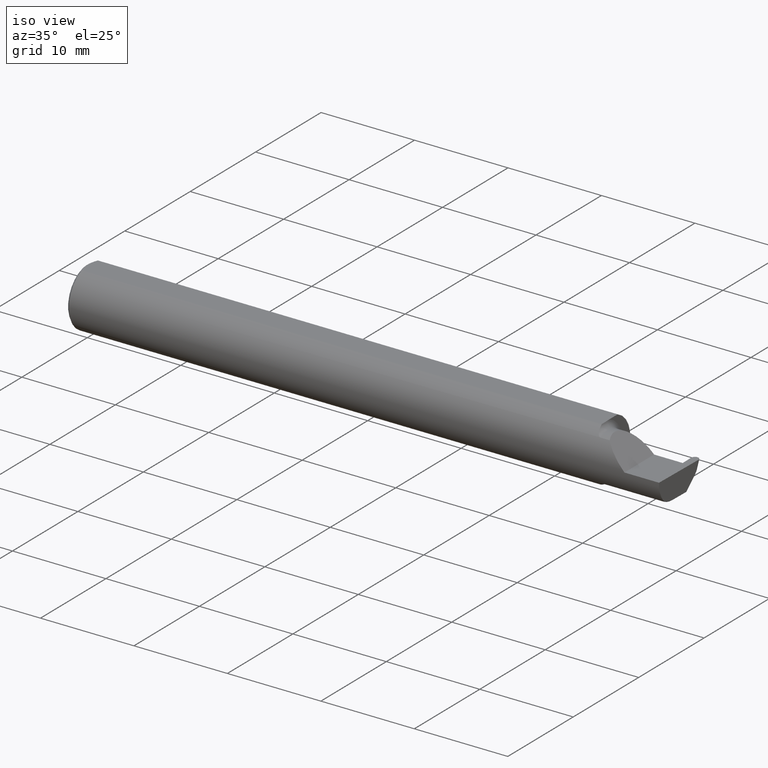
[diagram: clean part render]
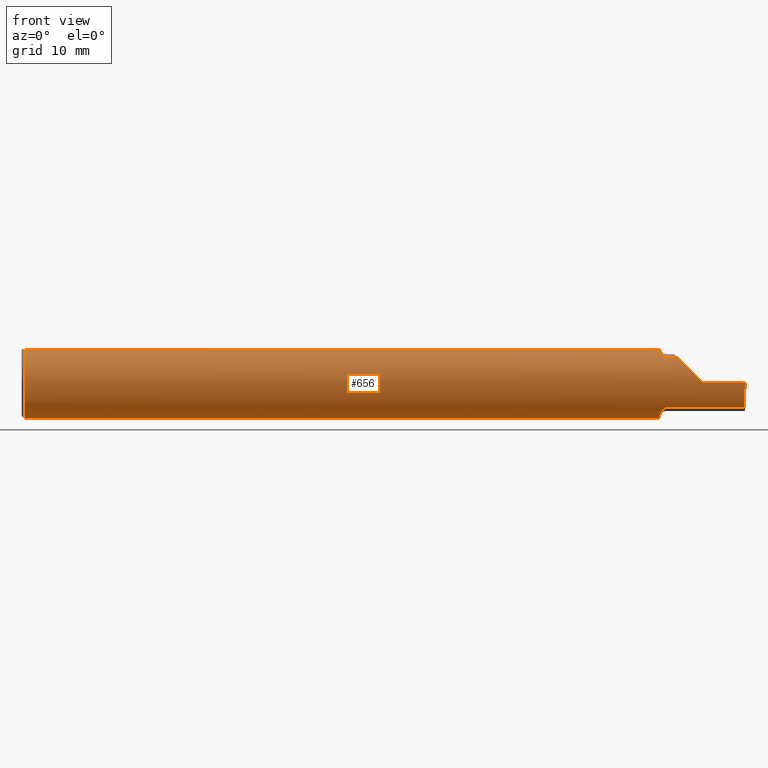
[diagram: tour spotlight — one face highlighted and labeled with its STEP entity id]
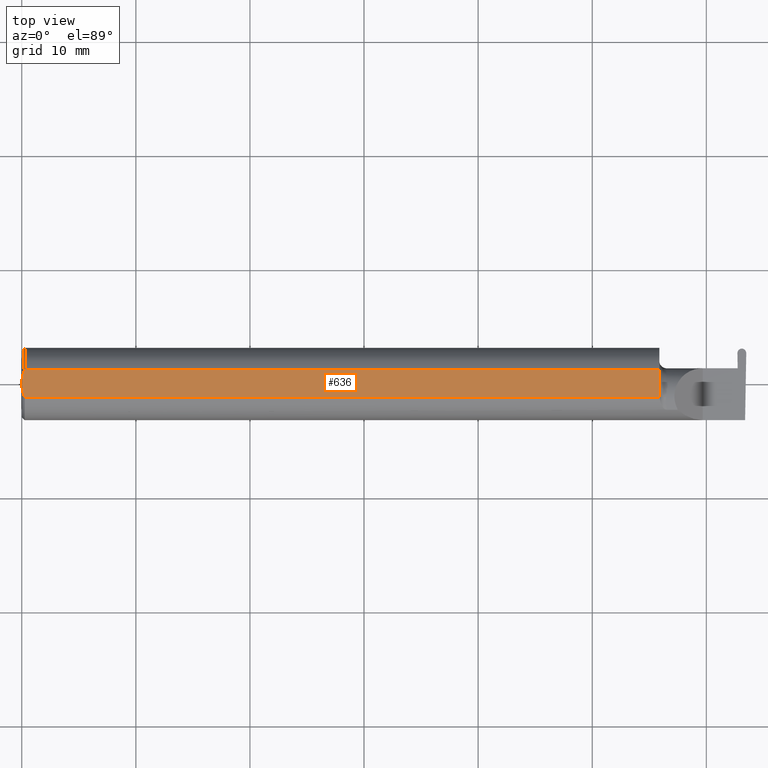
[diagram: tour spotlight — one face highlighted and labeled with its STEP entity id]
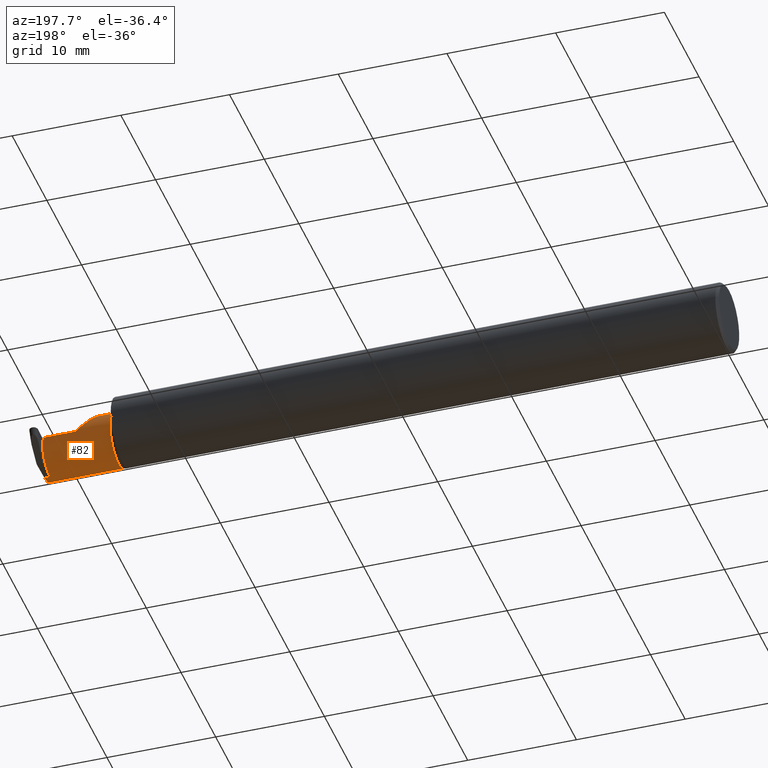
[diagram: tour spotlight — one face highlighted and labeled with its STEP entity id]
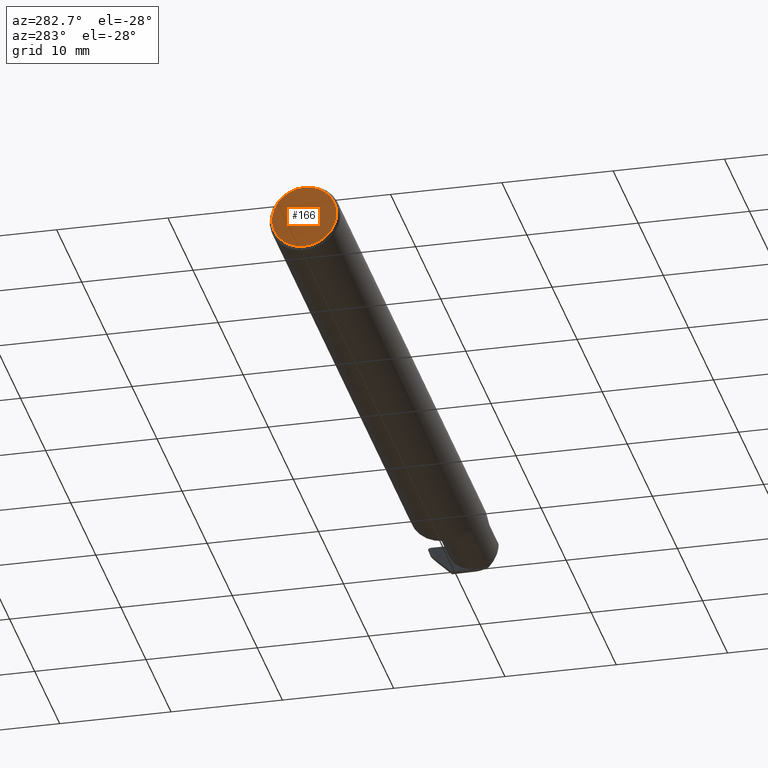
[diagram: tour spotlight — one face highlighted and labeled with its STEP entity id]
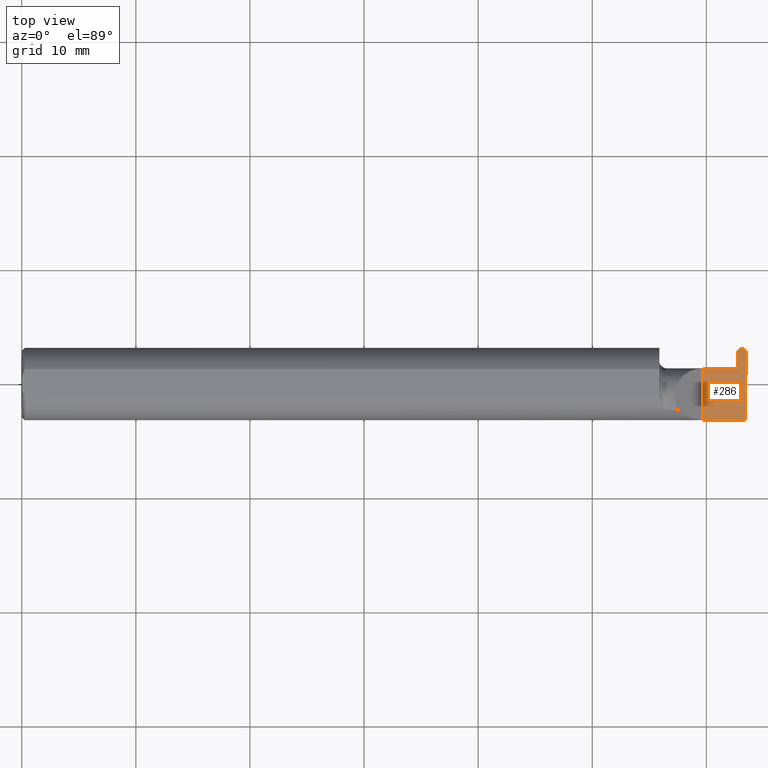
[diagram: tour spotlight — one face highlighted and labeled with its STEP entity id]
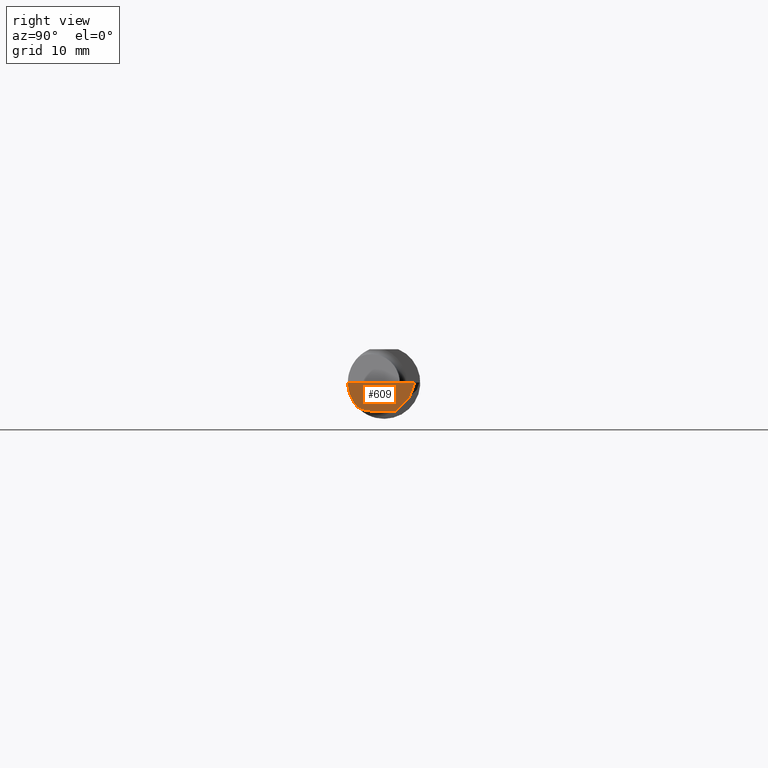
[diagram: tour spotlight — one face highlighted and labeled with its STEP entity id]
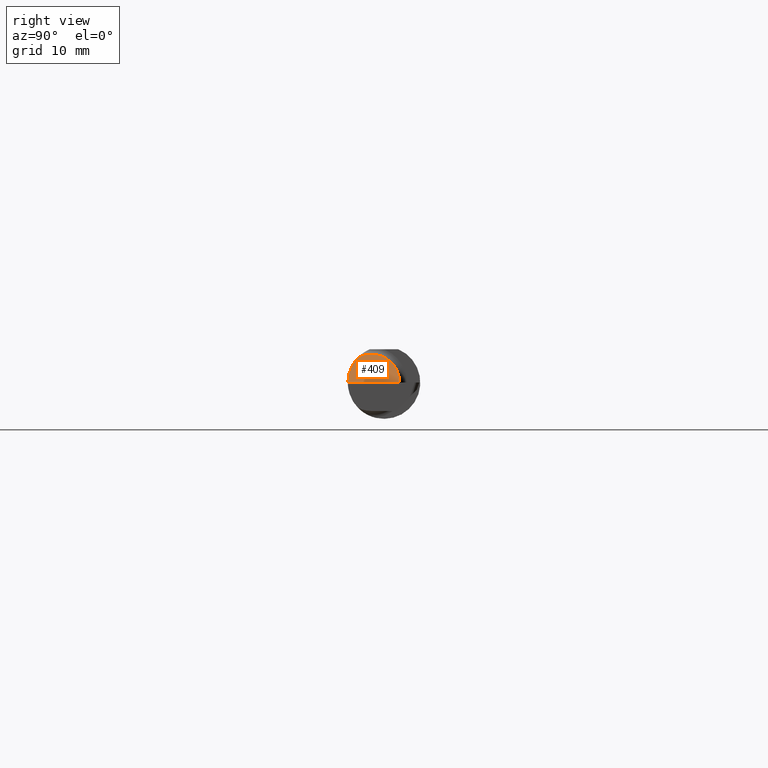
[diagram: tour spotlight — one face highlighted and labeled with its STEP entity id]
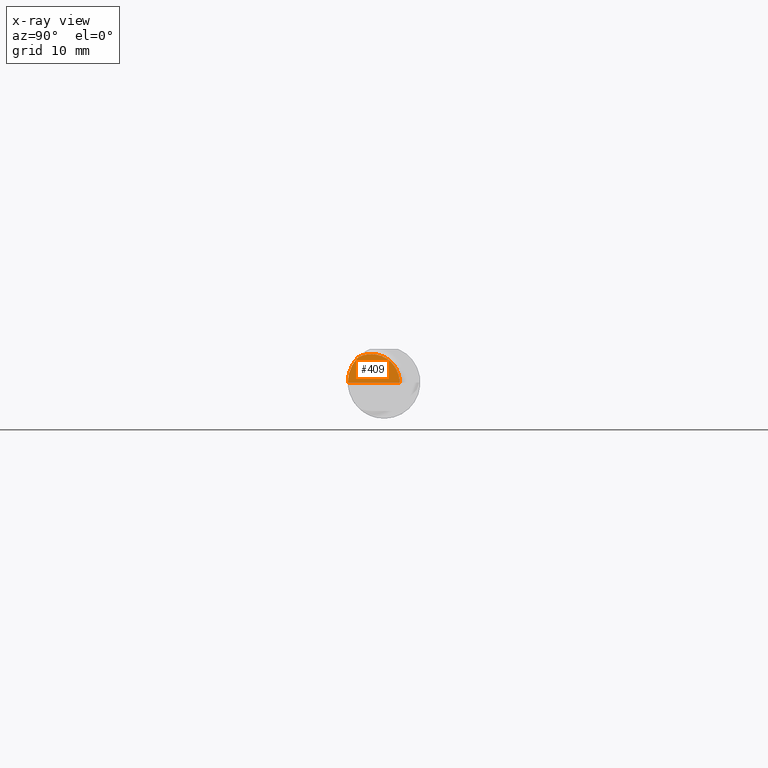
[diagram: x-ray of the same camera — body ghosted, this tour face saturated]
A machine part: a face-by-face anatomy tour. The part has 19 B-rep faces; the first image is the clean iso view, then the 7 largest visible faces are spotlighted one at a time (largest first), each with its STEP entity span.

Face 1 — front view, entity #656. In plain terms, the highlighted cylindrical surface (edge-blend (fillet) strip) has radius 3.175 mm, axis along (-1, -0, -0).
Definition (entity closure, byte-faithful):
#15 = ORIENTED_EDGE ( 'NONE', *, *, #61, .T. ) ;
#24 = CARTESIAN_POINT ( 'NONE',  ( 2.494820567471968786, -0.1250000000000000000, -0.03254916765648427357 ) ) ;
#34 = EDGE_CURVE ( 'NONE', #44, #296, #689, .T. ) ;
#35 = AXIS2_PLACEMENT_3D ( 'NONE', #391, #610, #122 ) ;
#38 = CARTESIAN_POINT ( 'NONE',  ( 2.495957382595297869, -0.1250000000000000000, 0.000000000000000000 ) ) ;
#40 = CARTESIAN_POINT ( 'NONE',  ( 2.202426556614085484, -0.05801934803182666467, 0.1111534264545083334 ) ) ;
#43 = EDGE_CURVE ( 'NONE', #390, #138, #578, .T. ) ;
#44 = VERTEX_POINT ( 'NONE', #642 ) ;
#45 = CARTESIAN_POINT ( 'NONE',  ( 2.210996102358147475, -0.08116363444194610310, 0.09515685373905001521 ) ) ;
#52 = DIRECTION ( 'NONE',  ( 1.000000000000000000, 0.000000000000000000, 0.000000000000000000 ) ) ;
#59 = CARTESIAN_POINT ( 'NONE',  ( 2.225000000000000089, -0.09042045454545413752, 0.08630840862739540265 ) ) ;
#61 = EDGE_CURVE ( 'NONE', #138, #100, #239, .T. ) ;
#62 = CARTESIAN_POINT ( 'NONE',  ( 2.205932841370987774, -0.07048791403321974514, -0.1034389270157553553 ) ) ;
#69 = CARTESIAN_POINT ( 'NONE',  ( 0.01000000000000042348, 0.000000000000000000, 0.000000000000000000 ) ) ;
#75 = CARTESIAN_POINT ( 'NONE',  ( 2.200000000000000178, 0.000000000000000000, 0.000000000000000000 ) ) ;
#80 = ORIENTED_EDGE ( 'NONE', *, *, #43, .T. ) ;
#86 = DIRECTION ( 'NONE',  ( 0.000000000000000000, 1.000000000000000000, 0.000000000000000000 ) ) ;
#89 = DIRECTION ( 'NONE',  ( 0.000000000000000000, 0.000000000000000000, -1.000000000000000000 ) ) ;
#96 = CARTESIAN_POINT ( 'NONE',  ( 2.204267307214414107, -0.06631395538221017405, 0.1063681193389255375 ) ) ;
#100 = VERTEX_POINT ( 'NONE', #103 ) ;
#101 = EDGE_CURVE ( 'NONE', #44, #114, #324, .T. ) ;
#103 = CARTESIAN_POINT ( 'NONE',  ( 2.263691591372603895, -0.09042045454545426242, 0.08630840862739529162 ) ) ;
#114 = VERTEX_POINT ( 'NONE', #389 ) ;
#116 = CARTESIAN_POINT ( 'NONE',  ( 0.000000000000000000, 0.04898979485566374442, 0.1149999999999999217 ) ) ;
#122 = DIRECTION ( 'NONE',  ( 0.000000000000000000, 0.000000000000000000, 1.000000000000000000 ) ) ;
#125 = DIRECTION ( 'NONE',  ( -1.000000000000000000, -1.584044490014838108E-16, -0.000000000000000000 ) ) ;
#127 = B_SPLINE_CURVE_WITH_KNOTS ( 'NONE', 3,
 ( #637, #40, #96, #422, #45, #263, #698, #474, #209, #271 ),
 .UNSPECIFIED., .F., .F.,
 ( 4, 2, 2, 2, 4 ),
 ( 5.067393806054781801E-07, 0.0007430328995834715403, 0.001114295979684904988, 0.001299927519735621277, 0.001485559059786337567 ),
 .UNSPECIFIED. ) ;
#128 = VERTEX_POINT ( 'NONE', #59 ) ;
#130 = CARTESIAN_POINT ( 'NONE',  ( 2.200000000000000178, -0.02763636363636349721, -0.1219066503721543682 ) ) ;
#138 = VERTEX_POINT ( 'NONE', #438 ) ;
#159 = CARTESIAN_POINT ( 'NONE',  ( 2.214104893754833991, -0.08507551663519469232, -0.09161800969921159166 ) ) ;
#169 = ORIENTED_EDGE ( 'NONE', *, *, #101, .F. ) ;
#174 = LINE ( 'NONE', #497, #653 ) ;
#176 = FACE_OUTER_BOUND ( 'NONE', #517, .T. ) ;
#186 = ORIENTED_EDGE ( 'NONE', *, *, #586, .T. ) ;
#189 = EDGE_CURVE ( 'NONE', #440, #234, #445, .T. ) ;
#194 = CARTESIAN_POINT ( 'NONE',  ( 0.01000000000000042348, 0.000000000000000000, 0.000000000000000000 ) ) ;
#197 = DIRECTION ( 'NONE',  ( 1.000000000000000000, 0.000000000000000000, 0.000000000000000000 ) ) ;
#202 = VECTOR ( 'NONE', #358, 39.37007874015748143 ) ;
#209 = CARTESIAN_POINT ( 'NONE',  ( 2.222488493957806899, -0.09042045454585179165, 0.08630840862697893023 ) ) ;
#216 = EDGE_CURVE ( 'NONE', #128, #100, #174, .T. ) ;
#226 = CARTESIAN_POINT ( 'NONE',  ( 2.217439721641150552, -0.08786602687380729027, -0.08891702384475598520 ) ) ;
#231 = DIRECTION ( 'NONE',  ( 0.000000000000000000, 0.000000000000000000, -1.000000000000000000 ) ) ;
#234 = VERTEX_POINT ( 'NONE', #551 ) ;
#239 =( BOUNDED_CURVE ( )  B_SPLINE_CURVE ( 3, ( #310, #464, #489, #520 ),
 .UNSPECIFIED., .F., .T. ) 
 B_SPLINE_CURVE_WITH_KNOTS ( ( 4, 4 ),
 ( 4.712388980384689674, 5.474523801125207534 ),
 .UNSPECIFIED. ) 
 CURVE ( )  GEOMETRIC_REPRESENTATION_ITEM ( )  RATIONAL_B_SPLINE_CURVE ( ( 1.000000000000000000, 0.9521787881681380572, 0.9521787881681380572, 1.000000000000000000 ) ) 
 REPRESENTATION_ITEM ( '' )  );
#241 = ORIENTED_EDGE ( 'NONE', *, *, #360, .T. ) ;
#254 = CARTESIAN_POINT ( 'NONE',  ( 2.493976598891079810, -0.1128945894460737925, -0.06276352435079125824 ) ) ;
#263 = CARTESIAN_POINT ( 'NONE',  ( 2.214945076695470583, -0.08578123596776233983, 0.09094459933486033487 ) ) ;
#264 = AXIS2_PLACEMENT_3D ( 'NONE', #194, #197, #89 ) ;
#271 = CARTESIAN_POINT ( 'NONE',  ( 2.225000000000000089, -0.09042045454545413752, 0.08630840862739540265 ) ) ;
#274 = ORIENTED_EDGE ( 'NONE', *, *, #189, .F. ) ;
#281 = CARTESIAN_POINT ( 'NONE',  ( 2.225000000000000089, -0.09042045454545417915, -0.08630840862739537489 ) ) ;
#289 = LINE ( 'NONE', #506, #439 ) ;
#296 = VERTEX_POINT ( 'NONE', #309 ) ;
#309 = CARTESIAN_POINT ( 'NONE',  ( 0.01000000000000042348, 0.000000000000000000, -0.1250000000000000000 ) ) ;
#310 = CARTESIAN_POINT ( 'NONE',  ( 2.350000000000000089, -0.1250000000000000278, 1.836970198721028825E-17 ) ) ;
#317 = VERTEX_POINT ( 'NONE', #130 ) ;
#324 = LINE ( 'NONE', #540, #463 ) ;
#329 = CARTESIAN_POINT ( 'NONE',  ( 2.218701570004388834, -0.08871861273376804857, -0.08806160498138418391 ) ) ;
#341 = CARTESIAN_POINT ( 'NONE',  ( 2.493546555653489705, -0.09042045454545424854, -0.08630840862739526387 ) ) ;
#356 = DIRECTION ( 'NONE',  ( 1.000000000000000000, 1.584044490014838108E-16, 0.000000000000000000 ) ) ;
#357 = EDGE_CURVE ( 'NONE', #317, #440, #486, .T. ) ;
#358 = DIRECTION ( 'NONE',  ( -1.000000000000000000, -0.000000000000000000, -0.000000000000000000 ) ) ;
#360 = EDGE_CURVE ( 'NONE', #655, #390, #696, .T. ) ;
#364 = CARTESIAN_POINT ( 'NONE',  ( 2.225000000000000089, -0.09042045454545417915, -0.08630840862739537489 ) ) ;
#379 = CARTESIAN_POINT ( 'NONE',  ( 2.221593478233292007, -0.08999923832592909845, -0.08675238105120963716 ) ) ;
#388 = DIRECTION ( 'NONE',  ( 1.000000000000000000, 0.000000000000000000, 0.000000000000000000 ) ) ;
#389 = CARTESIAN_POINT ( 'NONE',  ( 2.201278290187167919, -0.04898979485481827489, 0.1149999999999999217 ) ) ;
#390 = VERTEX_POINT ( 'NONE', #587 ) ;
#391 = CARTESIAN_POINT ( 'NONE',  ( 0.000000000000000000, 0.000000000000000000, 0.000000000000000000 ) ) ;
#422 = CARTESIAN_POINT ( 'NONE',  ( 2.209055883886138272, -0.07758562614434498517, 0.09811804109501673365 ) ) ;
#426 = VERTEX_POINT ( 'NONE', #364 ) ;
#427 = CARTESIAN_POINT ( 'NONE',  ( 2.223259114367880596, -0.09042045454545415140, -0.08630840862739541652 ) ) ;
#436 = VECTOR ( 'NONE', #442, 39.37007874015748143 ) ;
#438 = CARTESIAN_POINT ( 'NONE',  ( 2.350000000000000089, -0.1250000000000000278, 1.836970198721028825E-17 ) ) ;
#439 = VECTOR ( 'NONE', #125, 39.37007874015748143 ) ;
#440 = VERTEX_POINT ( 'NONE', #641 ) ;
#441 = CARTESIAN_POINT ( 'NONE',  ( 2.201267035147732365, -0.05364148398375680887, -0.1136671534952896495 ) ) ;
#442 = DIRECTION ( 'NONE',  ( -1.000000000000000000, -0.000000000000000000, -0.000000000000000000 ) ) ;
#445 = LINE ( 'NONE', #116, #436 ) ;
#462 = EDGE_CURVE ( 'NONE', #114, #128, #127, .T. ) ;
#463 = VECTOR ( 'NONE', #52, 39.37007874015748143 ) ;
#464 = CARTESIAN_POINT ( 'NONE',  ( 2.317450832343515454, -0.1250000000000000000, 0.03254916765648422500 ) ) ;
#474 = CARTESIAN_POINT ( 'NONE',  ( 2.220169762358874976, -0.08954173371311437146, 0.08723520050116063962 ) ) ;
#475 = CARTESIAN_POINT ( 'NONE',  ( 3.749399456654637998E-32, -0.1249999999999999861, 3.061616997868380183E-16 ) ) ;
#485 = ORIENTED_EDGE ( 'NONE', *, *, #34, .T. ) ;
#486 = CIRCLE ( 'NONE', #577, 0.1250000000000000000 ) ;
#489 = CARTESIAN_POINT ( 'NONE',  ( 2.287236475649208511, -0.1128945894460738203, 0.06276352435079116110 ) ) ;
#491 = CARTESIAN_POINT ( 'NONE',  ( 2.207957287629478849, -0.07583111505166761912, -0.09955951024620261769 ) ) ;
#496 = CYLINDRICAL_SURFACE ( 'NONE', #35, 0.1250000000000000000 ) ;
#497 = CARTESIAN_POINT ( 'NONE',  ( 2.347234615000000080, -0.09042045454545427630, 0.08630840862739526387 ) ) ;
#498 = ORIENTED_EDGE ( 'NONE', *, *, #357, .F. ) ;
#506 = CARTESIAN_POINT ( 'NONE',  ( 2.347234615000000080, -0.09042045454545427630, -0.08630840862739526387 ) ) ;
#517 = EDGE_LOOP ( 'NONE', ( #614, #241, #80, #15, #552, #676, #169, #485, #186, #274, #498, #527 ) ) ;
#520 = CARTESIAN_POINT ( 'NONE',  ( 2.263691591372603895, -0.09042045454545426242, 0.08630840862739529162 ) ) ;
#525 = CIRCLE ( 'NONE', #613, 0.1250000000000000000 ) ;
#527 = ORIENTED_EDGE ( 'NONE', *, *, #565, .F. ) ;
#540 = CARTESIAN_POINT ( 'NONE',  ( 0.000000000000000000, -0.04898979485566374442, 0.1149999999999999217 ) ) ;
#543 = CARTESIAN_POINT ( 'NONE',  ( 2.200000000000000178, -0.04088126997068464857, -0.1189040164168497782 ) ) ;
#551 = CARTESIAN_POINT ( 'NONE',  ( 0.01000000000000042348, 0.04898979485566374442, 0.1149999999999999217 ) ) ;
#552 = ORIENTED_EDGE ( 'NONE', *, *, #216, .F. ) ;
#565 = EDGE_CURVE ( 'NONE', #426, #317, #573, .T. ) ;
#571 = CARTESIAN_POINT ( 'NONE',  ( 2.493546555653489705, -0.09042045454545424854, -0.08630840862739526387 ) ) ;
#573 = B_SPLINE_CURVE_WITH_KNOTS ( 'NONE', 3,
 ( #281, #427, #379, #329, #226, #159, #597, #491, #62, #441, #543, #602 ),
 .UNSPECIFIED., .F., .F.,
 ( 4, 2, 2, 2, 2, 4 ),
 ( 1.964009442425878487E-07, 0.0001304774066965708613, 0.0002607584124488991303, 0.0005213204239535685703, 0.001042444446962907450, 0.002084692492981586077 ),
 .UNSPECIFIED. ) ;
#577 = AXIS2_PLACEMENT_3D ( 'NONE', #75, #356, #86 ) ;
#578 = LINE ( 'NONE', #475, #202 ) ;
#586 = EDGE_CURVE ( 'NONE', #296, #234, #525, .T. ) ;
#587 = CARTESIAN_POINT ( 'NONE',  ( 2.495957382595297869, -0.1250000000000000000, 0.000000000000000000 ) ) ;
#597 = CARTESIAN_POINT ( 'NONE',  ( 2.212379706860116535, -0.08285324498731268250, -0.09364669410973930352 ) ) ;
#602 = CARTESIAN_POINT ( 'NONE',  ( 2.200000000000000178, -0.02763636363636349721, -0.1219066503721543682 ) ) ;
#610 = DIRECTION ( 'NONE',  ( -1.000000000000000000, -0.000000000000000000, -0.000000000000000000 ) ) ;
#613 = AXIS2_PLACEMENT_3D ( 'NONE', #69, #388, #231 ) ;
#614 = ORIENTED_EDGE ( 'NONE', *, *, #660, .F. ) ;
#637 = CARTESIAN_POINT ( 'NONE',  ( 2.201278290187167919, -0.04898979485481827489, 0.1149999999999999217 ) ) ;
#641 = CARTESIAN_POINT ( 'NONE',  ( 2.200000000000000178, 0.04898979485566374442, 0.1149999999999999217 ) ) ;
#642 = CARTESIAN_POINT ( 'NONE',  ( 0.01000000000000042348, -0.04898979485566374442, 0.1149999999999999217 ) ) ;
#653 = VECTOR ( 'NONE', #659, 39.37007874015748143 ) ;
#655 = VERTEX_POINT ( 'NONE', #341 ) ;
#656 = ADVANCED_FACE ( 'NONE', ( #176 ), #496, .T. ) ;
#659 = DIRECTION ( 'NONE',  ( 1.000000000000000000, 1.584044490014838108E-16, 0.000000000000000000 ) ) ;
#660 = EDGE_CURVE ( 'NONE', #655, #426, #289, .T. ) ;
#676 = ORIENTED_EDGE ( 'NONE', *, *, #462, .F. ) ;
#689 = CIRCLE ( 'NONE', #264, 0.1250000000000000000 ) ;
#696 =( BOUNDED_CURVE ( )  B_SPLINE_CURVE ( 3, ( #571, #254, #24, #38 ),
 .UNSPECIFIED., .F., .T. ) 
 B_SPLINE_CURVE_WITH_KNOTS ( ( 4, 4 ),
 ( 0.3451966888490350382, 1.107331509589553287 ),
 .UNSPECIFIED. ) 
 CURVE ( )  GEOMETRIC_REPRESENTATION_ITEM ( )  RATIONAL_B_SPLINE_CURVE ( ( 1.000000000000000000, 0.9521787881681380572, 0.9521787881681380572, 1.000000000000000000 ) ) 
 REPRESENTATION_ITEM ( '' )  );
#698 = CARTESIAN_POINT ( 'NONE',  ( 2.216446811421532548, -0.08721672169474514735, 0.08955973280246740109 ) ) ;

Face 2 — top view, entity #636. In plain terms, the highlighted planar face has unit normal (0, 0, 1).
Definition (entity closure, byte-faithful):
#29 = B_SPLINE_CURVE_WITH_KNOTS ( 'NONE', 3,
 ( #157, #581, #530, #84, #36, #42 ),
 .UNSPECIFIED., .F., .F.,
 ( 4, 2, 4 ),
 ( 0.001061950514642623312, 0.001696734447512964709, 0.002331518380383306322 ),
 .UNSPECIFIED. ) ;
#36 = CARTESIAN_POINT ( 'NONE',  ( 1.541666659510484467E-16, -0.008419750986449443114, 0.1149999999999999356 ) ) ;
#42 = CARTESIAN_POINT ( 'NONE',  ( 0.000000000000000000, 3.414809992080329023E-17, 0.1149999999999999217 ) ) ;
#44 = VERTEX_POINT ( 'NONE', #642 ) ;
#52 = DIRECTION ( 'NONE',  ( 1.000000000000000000, 0.000000000000000000, 0.000000000000000000 ) ) ;
#55 = DIRECTION ( 'NONE',  ( 1.000000000000000000, 0.000000000000000000, -0.000000000000000000 ) ) ;
#66 = DIRECTION ( 'NONE',  ( 0.000000000000000000, 0.000000000000000000, 1.000000000000000000 ) ) ;
#84 = CARTESIAN_POINT ( 'NONE',  ( 0.0009328476361608245343, -0.01672844127736827086, 0.1149999999999999217 ) ) ;
#91 = EDGE_CURVE ( 'NONE', #44, #307, #29, .T. ) ;
#101 = EDGE_CURVE ( 'NONE', #44, #114, #324, .T. ) ;
#106 = EDGE_LOOP ( 'NONE', ( #172, #140, #219, #224, #154, #467 ) ) ;
#114 = VERTEX_POINT ( 'NONE', #389 ) ;
#116 = CARTESIAN_POINT ( 'NONE',  ( 0.000000000000000000, 0.04898979485566374442, 0.1149999999999999217 ) ) ;
#140 = ORIENTED_EDGE ( 'NONE', *, *, #187, .T. ) ;
#146 = CARTESIAN_POINT ( 'NONE',  ( 1.642610067308552155E-16, 0.01684316307400865464, 0.1149999999999999217 ) ) ;
#154 = ORIENTED_EDGE ( 'NONE', *, *, #482, .F. ) ;
#157 = CARTESIAN_POINT ( 'NONE',  ( 0.01000000000000042348, -0.04898979485566374442, 0.1149999999999999217 ) ) ;
#172 = ORIENTED_EDGE ( 'NONE', *, *, #101, .T. ) ;
#187 = EDGE_CURVE ( 'NONE', #114, #407, #225, .T. ) ;
#188 = LINE ( 'NONE', #675, #598 ) ;
#189 = EDGE_CURVE ( 'NONE', #440, #234, #445, .T. ) ;
#219 = ORIENTED_EDGE ( 'NONE', *, *, #283, .T. ) ;
#224 = ORIENTED_EDGE ( 'NONE', *, *, #189, .T. ) ;
#225 = B_SPLINE_CURVE_WITH_KNOTS ( 'NONE', 3,
 ( #385, #279, #599, #612, #338, #227 ),
 .UNSPECIFIED., .F., .F.,
 ( 4, 2, 4 ),
 ( 0.009319464280412737694, 0.009934044568948304649, 0.01054862485748387160 ),
 .UNSPECIFIED. ) ;
#227 = CARTESIAN_POINT ( 'NONE',  ( 2.200000000000000178, -0.0003651515414568704703, 0.1149999999999999217 ) ) ;
#234 = VERTEX_POINT ( 'NONE', #551 ) ;
#253 = AXIS2_PLACEMENT_3D ( 'NONE', #278, #66, #55 ) ;
#278 = CARTESIAN_POINT ( 'NONE',  ( 2.753179778023443269, 0.1250000000000000278, 0.1149999999999999217 ) ) ;
#279 = CARTESIAN_POINT ( 'NONE',  ( 2.201395249340555527, -0.04087966525207987339, 0.1149999999999999356 ) ) ;
#283 = EDGE_CURVE ( 'NONE', #407, #440, #188, .T. ) ;
#307 = VERTEX_POINT ( 'NONE', #522 ) ;
#320 = CARTESIAN_POINT ( 'NONE',  ( 0.000000000000000000, 3.414809992080329023E-17, 0.1149999999999999217 ) ) ;
#324 = LINE ( 'NONE', #540, #463 ) ;
#338 = CARTESIAN_POINT ( 'NONE',  ( 2.200000000000000622, -0.008475349815580478230, 0.1149999999999999356 ) ) ;
#351 = B_SPLINE_CURVE_WITH_KNOTS ( 'NONE', 3,
 ( #320, #146, #479, #369 ),
 .UNSPECIFIED., .F., .F.,
 ( 4, 4 ),
 ( 0.002331518380383306322, 0.003601362264757408584 ),
 .UNSPECIFIED. ) ;
#369 = CARTESIAN_POINT ( 'NONE',  ( 0.01000000000000042348, 0.04898979485566374442, 0.1149999999999999217 ) ) ;
#385 = CARTESIAN_POINT ( 'NONE',  ( 2.201278290187167919, -0.04898979485481827489, 0.1149999999999999217 ) ) ;
#389 = CARTESIAN_POINT ( 'NONE',  ( 2.201278290187167919, -0.04898979485481827489, 0.1149999999999999217 ) ) ;
#407 = VERTEX_POINT ( 'NONE', #580 ) ;
#436 = VECTOR ( 'NONE', #442, 39.37007874015748143 ) ;
#440 = VERTEX_POINT ( 'NONE', #641 ) ;
#442 = DIRECTION ( 'NONE',  ( -1.000000000000000000, -0.000000000000000000, -0.000000000000000000 ) ) ;
#444 = PLANE ( 'NONE',  #253 ) ;
#445 = LINE ( 'NONE', #116, #436 ) ;
#463 = VECTOR ( 'NONE', #52, 39.37007874015748143 ) ;
#467 = ORIENTED_EDGE ( 'NONE', *, *, #91, .F. ) ;
#479 = CARTESIAN_POINT ( 'NONE',  ( 0.003880275146595849479, 0.03337499979622342988, 0.1149999999999999217 ) ) ;
#482 = EDGE_CURVE ( 'NONE', #307, #234, #351, .T. ) ;
#522 = CARTESIAN_POINT ( 'NONE',  ( 0.000000000000000000, 3.414809992080329023E-17, 0.1149999999999999217 ) ) ;
#530 = CARTESIAN_POINT ( 'NONE',  ( 0.004414142251465132810, -0.03315347577847933824, 0.1149999999999999356 ) ) ;
#540 = CARTESIAN_POINT ( 'NONE',  ( 0.000000000000000000, -0.04898979485566374442, 0.1149999999999999217 ) ) ;
#551 = CARTESIAN_POINT ( 'NONE',  ( 0.01000000000000042348, 0.04898979485566374442, 0.1149999999999999217 ) ) ;
#553 = FACE_OUTER_BOUND ( 'NONE', #106, .T. ) ;
#580 = CARTESIAN_POINT ( 'NONE',  ( 2.200000000000000178, -0.0003651515414568704703, 0.1149999999999999217 ) ) ;
#581 = CARTESIAN_POINT ( 'NONE',  ( 0.006956794985978487743, -0.04122489957750442163, 0.1149999999999999356 ) ) ;
#598 = VECTOR ( 'NONE', #685, 39.37007874015748143 ) ;
#599 = CARTESIAN_POINT ( 'NONE',  ( 2.201184456069787743, -0.03277259381711081915, 0.1149999999999999356 ) ) ;
#612 = CARTESIAN_POINT ( 'NONE',  ( 2.200474906351709503, -0.01657217611495901549, 0.1149999999999999217 ) ) ;
#636 = ADVANCED_FACE ( 'NONE', ( #553 ), #444, .T. ) ;
#641 = CARTESIAN_POINT ( 'NONE',  ( 2.200000000000000178, 0.04898979485566374442, 0.1149999999999999217 ) ) ;
#642 = CARTESIAN_POINT ( 'NONE',  ( 0.01000000000000042348, -0.04898979485566374442, 0.1149999999999999217 ) ) ;
#675 = CARTESIAN_POINT ( 'NONE',  ( 2.200000000000000178, 0.1249999999999999306, 0.1149999999999999217 ) ) ;
#685 = DIRECTION ( 'NONE',  ( -1.584044490014838108E-16, 1.000000000000000000, 0.000000000000000000 ) ) ;

Face 3 — auxiliary view, entity #82. In plain terms, the highlighted cylindrical surface (edge-blend (fillet) strip) has radius 2.4892 mm, axis along (-1, -0, -0).
Definition (entity closure, byte-faithful):
#11 = DIRECTION ( 'NONE',  ( -1.000000000000000000, -1.584044490014838108E-16, -0.000000000000000000 ) ) ;
#13 = EDGE_CURVE ( 'NONE', #128, #426, #22, .T. ) ;
#16 = CARTESIAN_POINT ( 'NONE',  ( 2.493664221452986052, -0.06028551311893171061, -0.09800000000000015643 ) ) ;
#19 = CARTESIAN_POINT ( 'NONE',  ( 2.463961723292897421, 0.05376127692546270320, -0.006836134426925991742 ) ) ;
#22 = CIRCLE ( 'NONE', #476, 0.09800000000000012867 ) ;
#32 = CYLINDRICAL_SURFACE ( 'NONE', #651, 0.09800000000000008704 ) ;
#58 = CARTESIAN_POINT ( 'NONE',  ( 2.493948486141865484, -0.04399999999999965050, -0.09800000000000001765 ) ) ;
#59 = CARTESIAN_POINT ( 'NONE',  ( 2.225000000000000089, -0.09042045454545413752, 0.08630840862739540265 ) ) ;
#70 = CARTESIAN_POINT ( 'NONE',  ( 2.224355642859858317, -0.01728409361947863543, 0.1256443571401404113 ) ) ;
#74 = ORIENTED_EDGE ( 'NONE', *, *, #13, .F. ) ;
#82 = ADVANCED_FACE ( 'NONE', ( #416 ), #32, .T. ) ;
#90 = B_SPLINE_CURVE_WITH_KNOTS ( 'NONE', 3,
 ( #19, #115, #605, #376 ),
 .UNSPECIFIED., .F., .F.,
 ( 4, 4 ),
 ( 0.000000000000000000, 1.000000000000000000 ),
 .UNSPECIFIED. ) ;
#94 = ORIENTED_EDGE ( 'NONE', *, *, #137, .T. ) ;
#95 = DIRECTION ( 'NONE',  ( 1.000000000000000000, 1.584044490014838108E-16, 0.000000000000000000 ) ) ;
#100 = VERTEX_POINT ( 'NONE', #103 ) ;
#103 = CARTESIAN_POINT ( 'NONE',  ( 2.263691591372603895, -0.09042045454545426242, 0.08630840862739529162 ) ) ;
#115 = CARTESIAN_POINT ( 'NONE',  ( 2.464041297651076157, 0.05384085128364179962, -0.004557422951283986688 ) ) ;
#125 = DIRECTION ( 'NONE',  ( -1.000000000000000000, -1.584044490014838108E-16, -0.000000000000000000 ) ) ;
#126 = CARTESIAN_POINT ( 'NONE',  ( 2.473987104431409012, -0.04400000000000004602, -0.09800000000000005929 ) ) ;
#128 = VERTEX_POINT ( 'NONE', #59 ) ;
#131 = EDGE_LOOP ( 'NONE', ( #399, #74, #643, #94, #433, #354, #175, #538, #182, #179 ) ) ;
#137 = EDGE_CURVE ( 'NONE', #100, #509, #313, .T. ) ;
#147 = DIRECTION ( 'NONE',  ( 0.000000000000000000, -1.000000000000000000, 0.000000000000000000 ) ) ;
#148 = CARTESIAN_POINT ( 'NONE',  ( 2.672413070268786939, -0.04399999999999965050, -0.09800000000000001765 ) ) ;
#164 = LINE ( 'NONE', #644, #223 ) ;
#173 = CARTESIAN_POINT ( 'NONE',  ( 2.470630317148074795, 0.05376127692545597941, -0.006836134426923960380 ) ) ;
#174 = LINE ( 'NONE', #497, #653 ) ;
#175 = ORIENTED_EDGE ( 'NONE', *, *, #557, .F. ) ;
#177 = CARTESIAN_POINT ( 'NONE',  ( 2.493948486141865484, -0.04399999999999965050, -0.09800000000000001765 ) ) ;
#179 = ORIENTED_EDGE ( 'NONE', *, *, #546, .F. ) ;
#181 = CARTESIAN_POINT ( 'NONE',  ( 2.470630317148074795, 0.05376127692545597941, -0.006836134426923960380 ) ) ;
#182 = ORIENTED_EDGE ( 'NONE', *, *, #419, .F. ) ;
#203 = DIRECTION ( 'NONE',  ( -1.000000000000000000, -1.584044490014838108E-16, -0.000000000000000000 ) ) ;
#210 = VERTEX_POINT ( 'NONE', #177 ) ;
#216 = EDGE_CURVE ( 'NONE', #128, #100, #174, .T. ) ;
#223 = VECTOR ( 'NONE', #11, 39.37007874015748143 ) ;
#257 = VERTEX_POINT ( 'NONE', #181 ) ;
#267 = DIRECTION ( 'NONE',  ( -1.000000000000000000, -0.000000000000000000, -0.000000000000000000 ) ) ;
#273 = DIRECTION ( 'NONE',  ( -1.000000000000000000, -1.584044490014838108E-16, -0.000000000000000000 ) ) ;
#276 = CARTESIAN_POINT ( 'NONE',  ( 2.263691591372603895, -0.09042045454545426242, 0.08630840862739529162 ) ) ;
#289 = LINE ( 'NONE', #506, #439 ) ;
#290 = CARTESIAN_POINT ( 'NONE',  ( 2.350000000000000089, 0.05400000000000000633, 3.673940397442056417E-17 ) ) ;
#313 =( BOUNDED_CURVE ( )  B_SPLINE_CURVE ( 3, ( #276, #70, #398, #290 ),
 .UNSPECIFIED., .F., .T. ) 
 B_SPLINE_CURVE_WITH_KNOTS ( ( 4, 4 ),
 ( 5.789722842198297137, 7.853981633974482790 ),
 .UNSPECIFIED. ) 
 CURVE ( )  GEOMETRIC_REPRESENTATION_ITEM ( )  RATIONAL_B_SPLINE_CURVE ( ( 1.000000000000000000, 0.6753281001527247085, 0.6753281001527247085, 1.000000000000000000 ) ) 
 REPRESENTATION_ITEM ( '' )  );
#331 = VERTEX_POINT ( 'NONE', #678 ) ;
#332 = CARTESIAN_POINT ( 'NONE',  ( 2.473919830754201410, 0.01027834358092145038, -0.09800000000000008704 ) ) ;
#341 = CARTESIAN_POINT ( 'NONE',  ( 2.493546555653489705, -0.09042045454545424854, -0.08630840862739526387 ) ) ;
#354 = ORIENTED_EDGE ( 'NONE', *, *, #620, .F. ) ;
#364 = CARTESIAN_POINT ( 'NONE',  ( 2.225000000000000089, -0.09042045454545417915, -0.08630840862739537489 ) ) ;
#366 = LINE ( 'NONE', #582, #579 ) ;
#376 = CARTESIAN_POINT ( 'NONE',  ( 2.464200446367434516, 0.05399999999999999245, 0.000000000000000000 ) ) ;
#382 = VERTEX_POINT ( 'NONE', #126 ) ;
#398 = CARTESIAN_POINT ( 'NONE',  ( 2.266956372099407702, 0.05399999999999999245, 0.08304362790059170718 ) ) ;
#399 = ORIENTED_EDGE ( 'NONE', *, *, #660, .T. ) ;
#416 = FACE_OUTER_BOUND ( 'NONE', #131, .T. ) ;
#419 = EDGE_CURVE ( 'NONE', #210, #382, #487, .T. ) ;
#426 = VERTEX_POINT ( 'NONE', #364 ) ;
#430 = CARTESIAN_POINT ( 'NONE',  ( 2.473987104431409012, -0.04400000000000004602, -0.09800000000000005929 ) ) ;
#433 = ORIENTED_EDGE ( 'NONE', *, *, #518, .T. ) ;
#439 = VECTOR ( 'NONE', #125, 39.37007874015748143 ) ;
#446 =( BOUNDED_CURVE ( )  B_SPLINE_CURVE ( 3, ( #652, #556, #16, #58 ),
 .UNSPECIFIED., .F., .T. ) 
 B_SPLINE_CURVE_WITH_KNOTS ( ( 4, 4 ),
 ( 6.253187659403644183, 6.746650124384936831 ),
 .UNSPECIFIED. ) 
 CURVE ( )  GEOMETRIC_REPRESENTATION_ITEM ( )  RATIONAL_B_SPLINE_CURVE ( ( 1.000000000000000000, 0.9798106333074685370, 0.9798106333074685370, 1.000000000000000000 ) ) 
 REPRESENTATION_ITEM ( '' )  );
#459 = CARTESIAN_POINT ( 'NONE',  ( 2.464200446367434516, 0.05399999999999999245, 0.000000000000000000 ) ) ;
#466 = CARTESIAN_POINT ( 'NONE',  ( 2.200000000000000178, -0.04400000000000008765, 0.000000000000000000 ) ) ;
#476 = AXIS2_PLACEMENT_3D ( 'NONE', #593, #273, #686 ) ;
#487 = LINE ( 'NONE', #148, #533 ) ;
#497 = CARTESIAN_POINT ( 'NONE',  ( 2.347234615000000080, -0.09042045454545427630, 0.08630840862739526387 ) ) ;
#506 = CARTESIAN_POINT ( 'NONE',  ( 2.347234615000000080, -0.09042045454545427630, -0.08630840862739526387 ) ) ;
#509 = VERTEX_POINT ( 'NONE', #632 ) ;
#518 = EDGE_CURVE ( 'NONE', #509, #683, #366, .T. ) ;
#533 = VECTOR ( 'NONE', #267, 39.37007874015748143 ) ;
#538 = ORIENTED_EDGE ( 'NONE', *, *, #592, .F. ) ;
#546 = EDGE_CURVE ( 'NONE', #655, #210, #446, .T. ) ;
#556 = CARTESIAN_POINT ( 'NONE',  ( 2.493527483980555903, -0.07607783494366254784, -0.09402249966297465678 ) ) ;
#557 = EDGE_CURVE ( 'NONE', #257, #331, #164, .T. ) ;
#574 =( BOUNDED_CURVE ( )  B_SPLINE_CURVE ( 3, ( #430, #332, #647, #173 ),
 .UNSPECIFIED., .F., .T. ) 
 B_SPLINE_CURVE_WITH_KNOTS ( ( 4, 4 ),
 ( 3.176499238629675315, 4.677482395344797261 ),
 .UNSPECIFIED. ) 
 CURVE ( )  GEOMETRIC_REPRESENTATION_ITEM ( )  RATIONAL_B_SPLINE_CURVE ( ( 1.000000000000000000, 0.8209024677461140840, 0.8209024677461140840, 1.000000000000000000 ) ) 
 REPRESENTATION_ITEM ( '' )  );
#579 = VECTOR ( 'NONE', #95, 39.37007874015748143 ) ;
#582 = CARTESIAN_POINT ( 'NONE',  ( 2.200000000000000178, 0.05399999999999998551, 3.673940397442056417E-17 ) ) ;
#592 = EDGE_CURVE ( 'NONE', #382, #257, #574, .T. ) ;
#593 = CARTESIAN_POINT ( 'NONE',  ( 2.225000000000000089, -0.04400000000000008765, 0.000000000000000000 ) ) ;
#605 = CARTESIAN_POINT ( 'NONE',  ( 2.464120872009255336, 0.05392042564182088910, -0.002278711475641992910 ) ) ;
#620 = EDGE_CURVE ( 'NONE', #331, #683, #90, .T. ) ;
#632 = CARTESIAN_POINT ( 'NONE',  ( 2.350000000000000089, 0.05400000000000000633, 3.673940397442056417E-17 ) ) ;
#643 = ORIENTED_EDGE ( 'NONE', *, *, #216, .T. ) ;
#644 = CARTESIAN_POINT ( 'NONE',  ( 2.199999999999999734, 0.05376127692546130155, -0.006836134426945271458 ) ) ;
#647 = CARTESIAN_POINT ( 'NONE',  ( 2.472556783207861653, 0.04997501107658557790, -0.06098225869090281859 ) ) ;
#651 = AXIS2_PLACEMENT_3D ( 'NONE', #466, #203, #147 ) ;
#652 = CARTESIAN_POINT ( 'NONE',  ( 2.493546555653489705, -0.09042045454545424854, -0.08630840862739526387 ) ) ;
#653 = VECTOR ( 'NONE', #659, 39.37007874015748143 ) ;
#655 = VERTEX_POINT ( 'NONE', #341 ) ;
#659 = DIRECTION ( 'NONE',  ( 1.000000000000000000, 1.584044490014838108E-16, 0.000000000000000000 ) ) ;
#660 = EDGE_CURVE ( 'NONE', #655, #426, #289, .T. ) ;
#678 = CARTESIAN_POINT ( 'NONE',  ( 2.463961723292897421, 0.05376127692546270320, -0.006836134426925991742 ) ) ;
#683 = VERTEX_POINT ( 'NONE', #459 ) ;
#686 = DIRECTION ( 'NONE',  ( 0.000000000000000000, -1.000000000000000000, 0.000000000000000000 ) ) ;

Face 4 — auxiliary view, entity #166. In plain terms, the highlighted planar face has unit normal (1, 0, 0).
Definition (entity closure, byte-faithful):
#33 = DIRECTION ( 'NONE',  ( 0.000000000000000000, 0.000000000000000000, -1.000000000000000000 ) ) ;
#47 = AXIS2_PLACEMENT_3D ( 'NONE', #143, #623, #33 ) ;
#76 = CIRCLE ( 'NONE', #47, 0.1149999999999997274 ) ;
#143 = CARTESIAN_POINT ( 'NONE',  ( 0.000000000000000000, 0.000000000000000000, 0.000000000000000000 ) ) ;
#166 = ADVANCED_FACE ( 'NONE', ( #392 ), #431, .F. ) ;
#198 = DIRECTION ( 'NONE',  ( 0.000000000000000000, 0.000000000000000000, -1.000000000000000000 ) ) ;
#307 = VERTEX_POINT ( 'NONE', #522 ) ;
#334 = EDGE_CURVE ( 'NONE', #494, #307, #76, .T. ) ;
#368 = EDGE_CURVE ( 'NONE', #307, #494, #699, .T. ) ;
#392 = FACE_OUTER_BOUND ( 'NONE', #617, .T. ) ;
#431 = PLANE ( 'NONE',  #585 ) ;
#494 = VERTEX_POINT ( 'NONE', #529 ) ;
#500 = CARTESIAN_POINT ( 'NONE',  ( 0.000000000000000000, 0.000000000000000000, 0.000000000000000000 ) ) ;
#515 = CARTESIAN_POINT ( 'NONE',  ( 0.000000000000000000, 0.000000000000000000, 0.000000000000000000 ) ) ;
#522 = CARTESIAN_POINT ( 'NONE',  ( 0.000000000000000000, 3.414809992080329023E-17, 0.1149999999999999217 ) ) ;
#529 = CARTESIAN_POINT ( 'NONE',  ( 0.000000000000000000, 0.000000000000000000, -0.1149999999999997274 ) ) ;
#585 = AXIS2_PLACEMENT_3D ( 'NONE', #500, #603, #654 ) ;
#594 = ORIENTED_EDGE ( 'NONE', *, *, #368, .T. ) ;
#603 = DIRECTION ( 'NONE',  ( 1.000000000000000000, 0.000000000000000000, 0.000000000000000000 ) ) ;
#611 = AXIS2_PLACEMENT_3D ( 'NONE', #515, #630, #198 ) ;
#617 = EDGE_LOOP ( 'NONE', ( #594, #640 ) ) ;
#623 = DIRECTION ( 'NONE',  ( -1.000000000000000000, -0.000000000000000000, -0.000000000000000000 ) ) ;
#630 = DIRECTION ( 'NONE',  ( -1.000000000000000000, -0.000000000000000000, -0.000000000000000000 ) ) ;
#640 = ORIENTED_EDGE ( 'NONE', *, *, #334, .T. ) ;
#654 = DIRECTION ( 'NONE',  ( 0.000000000000000000, 0.000000000000000000, -1.000000000000000000 ) ) ;
#699 = CIRCLE ( 'NONE', #611, 0.1149999999999997274 ) ;

Face 5 — top view, entity #286. In plain terms, the highlighted planar face has unit normal (-0, 0, -1).
Definition (entity closure, byte-faithful):
#3 = VERTEX_POINT ( 'NONE', #39 ) ;
#7 = CARTESIAN_POINT ( 'NONE',  ( 2.469484345974817696, 0.1057354023860208880, 0.000000000000000000 ) ) ;
#9 = EDGE_CURVE ( 'NONE', #68, #562, #184, .T. ) ;
#27 = LINE ( 'NONE', #79, #251 ) ;
#39 = CARTESIAN_POINT ( 'NONE',  ( 2.484590643401954679, 0.1219999999999999835, 0.000000000000000000 ) ) ;
#43 = EDGE_CURVE ( 'NONE', #390, #138, #578, .T. ) ;
#53 = ORIENTED_EDGE ( 'NONE', *, *, #295, .F. ) ;
#60 = VERTEX_POINT ( 'NONE', #572 ) ;
#68 = VERTEX_POINT ( 'NONE', #199 ) ;
#79 = CARTESIAN_POINT ( 'NONE',  ( 2.470387390782552650, 0.05400000000000000633, 0.000000000000000000 ) ) ;
#92 = LINE ( 'NONE', #269, #488 ) ;
#95 = DIRECTION ( 'NONE',  ( 1.000000000000000000, 1.584044490014838108E-16, 0.000000000000000000 ) ) ;
#105 = CARTESIAN_POINT ( 'NONE',  ( 2.475584878715685111, 0.1219999999999998724, 1.127860089025957087E-18 ) ) ;
#111 = CARTESIAN_POINT ( 'NONE',  ( 2.469318218598224313, 0.1152528334169432706, 1.895304614445361654E-18 ) ) ;
#135 = FACE_OUTER_BOUND ( 'NONE', #608, .T. ) ;
#138 = VERTEX_POINT ( 'NONE', #438 ) ;
#144 = ORIENTED_EDGE ( 'NONE', *, *, #43, .F. ) ;
#152 = AXIS2_PLACEMENT_3D ( 'NONE', #302, #306, #348 ) ;
#184 =( BOUNDED_CURVE ( )  B_SPLINE_CURVE ( 3, ( #410, #524, #312, #421 ),
 .UNSPECIFIED., .F., .T. ) 
 B_SPLINE_CURVE_WITH_KNOTS ( ( 4, 4 ),
 ( 1.677524580234105667, 3.253450286950869685 ),
 .UNSPECIFIED. ) 
 CURVE ( )  GEOMETRIC_REPRESENTATION_ITEM ( )  RATIONAL_B_SPLINE_CURVE ( ( 1.000000000000000000, 0.8035272986452609567, 0.8035272986452609567, 1.000000000000000000 ) ) 
 REPRESENTATION_ITEM ( '' )  );
#185 = LINE ( 'NONE', #627, #393 ) ;
#199 = CARTESIAN_POINT ( 'NONE',  ( 2.499984884025182375, 0.1057354023860208464, 0.000000000000000000 ) ) ;
#202 = VECTOR ( 'NONE', #358, 39.37007874015748143 ) ;
#213 = EDGE_CURVE ( 'NONE', #60, #566, #333, .T. ) ;
#220 = CARTESIAN_POINT ( 'NONE',  ( 2.484590643401954679, 0.1219999999999999835, 0.000000000000000000 ) ) ;
#222 = VECTOR ( 'NONE', #548, 39.37007874015747433 ) ;
#228 = ORIENTED_EDGE ( 'NONE', *, *, #383, .F. ) ;
#229 =( BOUNDED_CURVE ( )  B_SPLINE_CURVE ( 3, ( #220, #105, #111, #7 ),
 .UNSPECIFIED., .F., .T. ) 
 B_SPLINE_CURVE_WITH_KNOTS ( ( 4, 4 ),
 ( 6.171327673818510995, 7.747253380535275902 ),
 .UNSPECIFIED. ) 
 CURVE ( )  GEOMETRIC_REPRESENTATION_ITEM ( )  RATIONAL_B_SPLINE_CURVE ( ( 1.000000000000000000, 0.8035272986452608457, 0.8035272986452608457, 1.000000000000000000 ) ) 
 REPRESENTATION_ITEM ( '' )  );
#251 = VECTOR ( 'NONE', #361, 39.37007874015748143 ) ;
#269 = CARTESIAN_POINT ( 'NONE',  ( -3.937007874019685528E-05, 0.1219999999999999835, 0.000000000000000000 ) ) ;
#286 = ADVANCED_FACE ( 'NONE', ( #135 ), #511, .F. ) ;
#295 = EDGE_CURVE ( 'NONE', #683, #60, #27, .T. ) ;
#299 = CARTESIAN_POINT ( 'NONE',  ( 2.350000000000000089, -0.2500000000000000555, 1.836970198721028825E-17 ) ) ;
#302 = CARTESIAN_POINT ( 'NONE',  ( 2.500000000000000000, -0.2500000000000000555, 0.000000000000000000 ) ) ;
#306 = DIRECTION ( 'NONE',  ( -1.224646799147352468E-16, 0.000000000000000000, -1.000000000000000000 ) ) ;
#308 = VECTOR ( 'NONE', #561, 39.37007874015748143 ) ;
#311 = DIRECTION ( 'NONE',  ( 1.000000000000000000, -0.000000000000000000, -0.000000000000000000 ) ) ;
#312 = CARTESIAN_POINT ( 'NONE',  ( 2.493884351284315848, 0.1219999999999998030, -1.127860089025957857E-18 ) ) ;
#326 = CARTESIAN_POINT ( 'NONE',  ( 2.484878586598046724, 0.1219999999999999835, 0.000000000000000000 ) ) ;
#333 = LINE ( 'NONE', #507, #222 ) ;
#337 = CARTESIAN_POINT ( 'NONE',  ( 2.469484345974817696, 0.1057354023860208880, 0.000000000000000000 ) ) ;
#344 = EDGE_CURVE ( 'NONE', #68, #390, #185, .T. ) ;
#345 = LINE ( 'NONE', #299, #308 ) ;
#348 = DIRECTION ( 'NONE',  ( -1.000000000000000000, 0.000000000000000000, 1.224646799147352468E-16 ) ) ;
#352 = ORIENTED_EDGE ( 'NONE', *, *, #437, .F. ) ;
#358 = DIRECTION ( 'NONE',  ( -1.000000000000000000, -0.000000000000000000, -0.000000000000000000 ) ) ;
#361 = DIRECTION ( 'NONE',  ( 1.000000000000000000, 2.759690214555744741E-15, -0.000000000000000000 ) ) ;
#366 = LINE ( 'NONE', #582, #579 ) ;
#383 = EDGE_CURVE ( 'NONE', #138, #509, #345, .T. ) ;
#387 = ORIENTED_EDGE ( 'NONE', *, *, #9, .T. ) ;
#390 = VERTEX_POINT ( 'NONE', #587 ) ;
#393 = VECTOR ( 'NONE', #619, 39.37007874015748854 ) ;
#410 = CARTESIAN_POINT ( 'NONE',  ( 2.499984884025182375, 0.1057354023860208464, 0.000000000000000000 ) ) ;
#421 = CARTESIAN_POINT ( 'NONE',  ( 2.484878586598046724, 0.1219999999999999835, 0.000000000000000000 ) ) ;
#425 = ORIENTED_EDGE ( 'NONE', *, *, #536, .T. ) ;
#437 = EDGE_CURVE ( 'NONE', #3, #562, #92, .T. ) ;
#438 = CARTESIAN_POINT ( 'NONE',  ( 2.350000000000000089, -0.1250000000000000278, 1.836970198721028825E-17 ) ) ;
#459 = CARTESIAN_POINT ( 'NONE',  ( 2.464200446367434516, 0.05399999999999999245, 0.000000000000000000 ) ) ;
#475 = CARTESIAN_POINT ( 'NONE',  ( 3.749399456654637998E-32, -0.1249999999999999861, 3.061616997868380183E-16 ) ) ;
#488 = VECTOR ( 'NONE', #311, 39.37007874015748143 ) ;
#507 = CARTESIAN_POINT ( 'NONE',  ( 2.469471554992074935, 0.1064681972965584034, 0.000000000000000000 ) ) ;
#509 = VERTEX_POINT ( 'NONE', #632 ) ;
#511 = PLANE ( 'NONE',  #152 ) ;
#514 = ORIENTED_EDGE ( 'NONE', *, *, #213, .F. ) ;
#518 = EDGE_CURVE ( 'NONE', #509, #683, #366, .T. ) ;
#524 = CARTESIAN_POINT ( 'NONE',  ( 2.500151011401777534, 0.1152528334169432289, -1.895304614445360883E-18 ) ) ;
#536 = EDGE_CURVE ( 'NONE', #3, #566, #229, .T. ) ;
#548 = DIRECTION ( 'NONE',  ( -0.01745240643727411639, 0.9998476951563914916, -0.000000000000000000 ) ) ;
#561 = DIRECTION ( 'NONE',  ( -0.000000000000000000, 1.000000000000000000, -0.000000000000000000 ) ) ;
#562 = VERTEX_POINT ( 'NONE', #326 ) ;
#566 = VERTEX_POINT ( 'NONE', #337 ) ;
#572 = CARTESIAN_POINT ( 'NONE',  ( 2.470387390782552650, 0.05400000000000000633, 0.000000000000000000 ) ) ;
#578 = LINE ( 'NONE', #475, #202 ) ;
#579 = VECTOR ( 'NONE', #95, 39.37007874015748143 ) ;
#582 = CARTESIAN_POINT ( 'NONE',  ( 2.200000000000000178, 0.05399999999999998551, 3.673940397442056417E-17 ) ) ;
#587 = CARTESIAN_POINT ( 'NONE',  ( 2.495957382595297869, -0.1250000000000000000, 0.000000000000000000 ) ) ;
#608 = EDGE_LOOP ( 'NONE', ( #352, #425, #514, #53, #700, #228, #144, #684, #387 ) ) ;
#619 = DIRECTION ( 'NONE',  ( -0.01745240643727679133, -0.9998476951563912696, 0.000000000000000000 ) ) ;
#627 = CARTESIAN_POINT ( 'NONE',  ( 2.499997675007925135, 0.1064681972965584866, 0.000000000000000000 ) ) ;
#632 = CARTESIAN_POINT ( 'NONE',  ( 2.350000000000000089, 0.05400000000000000633, 3.673940397442056417E-17 ) ) ;
#683 = VERTEX_POINT ( 'NONE', #459 ) ;
#684 = ORIENTED_EDGE ( 'NONE', *, *, #344, .F. ) ;
#700 = ORIENTED_EDGE ( 'NONE', *, *, #518, .F. ) ;

Face 6 — right view, entity #609. In plain terms, the highlighted planar face has unit normal (-0.9992, 0.0174, 0.0349).
Definition (entity closure, byte-faithful):
#4 = PLANE ( 'NONE',  #380 ) ;
#16 = CARTESIAN_POINT ( 'NONE',  ( 2.493664221452986052, -0.06028551311893171061, -0.09800000000000015643 ) ) ;
#24 = CARTESIAN_POINT ( 'NONE',  ( 2.494820567471968786, -0.1250000000000000000, -0.03254916765648427357 ) ) ;
#38 = CARTESIAN_POINT ( 'NONE',  ( 2.495957382595297869, -0.1250000000000000000, 0.000000000000000000 ) ) ;
#58 = CARTESIAN_POINT ( 'NONE',  ( 2.493948486141865484, -0.04399999999999965050, -0.09800000000000001765 ) ) ;
#68 = VERTEX_POINT ( 'NONE', #199 ) ;
#120 = ORIENTED_EDGE ( 'NONE', *, *, #546, .T. ) ;
#129 = LINE ( 'NONE', #563, #192 ) ;
#177 = CARTESIAN_POINT ( 'NONE',  ( 2.493948486141865484, -0.04399999999999965050, -0.09800000000000001765 ) ) ;
#185 = LINE ( 'NONE', #627, #393 ) ;
#192 = VECTOR ( 'NONE', #235, 39.37007874015748143 ) ;
#199 = CARTESIAN_POINT ( 'NONE',  ( 2.499984884025182375, 0.1057354023860208464, 0.000000000000000000 ) ) ;
#210 = VERTEX_POINT ( 'NONE', #177 ) ;
#215 = ORIENTED_EDGE ( 'NONE', *, *, #690, .F. ) ;
#232 = LINE ( 'NONE', #236, #679 ) ;
#235 = DIRECTION ( 'NONE',  ( -0.01745240643727679480, -0.9998476951563912696, 0.000000000000000000 ) ) ;
#236 = CARTESIAN_POINT ( 'NONE',  ( 2.495862202245279438, 0.04836703517574777317, -0.08936910210530095433 ) ) ;
#243 = EDGE_CURVE ( 'NONE', #303, #555, #232, .T. ) ;
#254 = CARTESIAN_POINT ( 'NONE',  ( 2.493976598891079810, -0.1128945894460737925, -0.06276352435079125824 ) ) ;
#277 = ORIENTED_EDGE ( 'NONE', *, *, #344, .T. ) ;
#291 = ORIENTED_EDGE ( 'NONE', *, *, #243, .F. ) ;
#300 = ORIENTED_EDGE ( 'NONE', *, *, #668, .T. ) ;
#303 = VERTEX_POINT ( 'NONE', #567 ) ;
#341 = CARTESIAN_POINT ( 'NONE',  ( 2.493546555653489705, -0.09042045454545424854, -0.08630840862739526387 ) ) ;
#344 = EDGE_CURVE ( 'NONE', #68, #390, #185, .T. ) ;
#360 = EDGE_CURVE ( 'NONE', #655, #390, #696, .T. ) ;
#380 = AXIS2_PLACEMENT_3D ( 'NONE', #502, #657, #499 ) ;
#384 = FACE_OUTER_BOUND ( 'NONE', #646, .T. ) ;
#390 = VERTEX_POINT ( 'NONE', #587 ) ;
#393 = VECTOR ( 'NONE', #619, 39.37007874015748854 ) ;
#400 = CARTESIAN_POINT ( 'NONE',  ( 2.499994123636400722, 0.1058131194589338464, 0.0002257067685350752845 ) ) ;
#446 =( BOUNDED_CURVE ( )  B_SPLINE_CURVE ( 3, ( #652, #556, #16, #58 ),
 .UNSPECIFIED., .F., .T. ) 
 B_SPLINE_CURVE_WITH_KNOTS ( ( 4, 4 ),
 ( 6.253187659403644183, 6.746650124384936831 ),
 .UNSPECIFIED. ) 
 CURVE ( )  GEOMETRIC_REPRESENTATION_ITEM ( )  RATIONAL_B_SPLINE_CURVE ( ( 1.000000000000000000, 0.9798106333074685370, 0.9798106333074685370, 1.000000000000000000 ) ) 
 REPRESENTATION_ITEM ( '' )  );
#499 = DIRECTION ( 'NONE',  ( 0.03490480639812536257, 0.000000000000000000, 0.9993906415863165194 ) ) ;
#502 = CARTESIAN_POINT ( 'NONE',  ( 2.499997675007925135, 0.1064681972965584866, 0.000000000000000000 ) ) ;
#544 = VECTOR ( 'NONE', #670, 39.37007874015748143 ) ;
#546 = EDGE_CURVE ( 'NONE', #655, #210, #446, .T. ) ;
#555 = VERTEX_POINT ( 'NONE', #591 ) ;
#556 = CARTESIAN_POINT ( 'NONE',  ( 2.493527483980555903, -0.07607783494366254784, -0.09402249966297465678 ) ) ;
#563 = CARTESIAN_POINT ( 'NONE',  ( 2.494002844043214928, -0.04088583791737551015, -0.09800000000000001765 ) ) ;
#567 = CARTESIAN_POINT ( 'NONE',  ( 2.497986945264153213, 0.08893015498921681694, -0.04880598229183145953 ) ) ;
#571 = CARTESIAN_POINT ( 'NONE',  ( 2.493546555653489705, -0.09042045454545424854, -0.08630840862739526387 ) ) ;
#587 = CARTESIAN_POINT ( 'NONE',  ( 2.495957382595297869, -0.1250000000000000000, 0.000000000000000000 ) ) ;
#591 = CARTESIAN_POINT ( 'NONE',  ( 2.495410105854944049, 0.03973613728104880005, -0.09800000000000001765 ) ) ;
#609 = ADVANCED_FACE ( 'NONE', ( #384 ), #4, .F. ) ;
#618 = LINE ( 'NONE', #400, #544 ) ;
#619 = DIRECTION ( 'NONE',  ( -0.01745240643727679133, -0.9998476951563912696, 0.000000000000000000 ) ) ;
#627 = CARTESIAN_POINT ( 'NONE',  ( 2.499997675007925135, 0.1064681972965584866, 0.000000000000000000 ) ) ;
#646 = EDGE_LOOP ( 'NONE', ( #291, #300, #277, #669, #120, #215 ) ) ;
#652 = CARTESIAN_POINT ( 'NONE',  ( 2.493546555653489705, -0.09042045454545424854, -0.08630840862739526387 ) ) ;
#655 = VERTEX_POINT ( 'NONE', #341 ) ;
#657 = DIRECTION ( 'NONE',  ( -0.9992386149554827179, 0.01744177490282344464, 0.03489949670250104552 ) ) ;
#666 = DIRECTION ( 'NONE',  ( -0.03701368837992469879, -0.7066222423871550973, -0.7066222423871629799 ) ) ;
#668 = EDGE_CURVE ( 'NONE', #303, #68, #618, .T. ) ;
#669 = ORIENTED_EDGE ( 'NONE', *, *, #360, .F. ) ;
#670 = DIRECTION ( 'NONE',  ( 0.03867711768363032293, 0.3253245514560478280, 0.9448111011136606230 ) ) ;
#679 = VECTOR ( 'NONE', #666, 39.37007874015748143 ) ;
#690 = EDGE_CURVE ( 'NONE', #555, #210, #129, .T. ) ;
#696 =( BOUNDED_CURVE ( )  B_SPLINE_CURVE ( 3, ( #571, #254, #24, #38 ),
 .UNSPECIFIED., .F., .T. ) 
 B_SPLINE_CURVE_WITH_KNOTS ( ( 4, 4 ),
 ( 0.3451966888490350382, 1.107331509589553287 ),
 .UNSPECIFIED. ) 
 CURVE ( )  GEOMETRIC_REPRESENTATION_ITEM ( )  RATIONAL_B_SPLINE_CURVE ( ( 1.000000000000000000, 0.9521787881681380572, 0.9521787881681380572, 1.000000000000000000 ) ) 
 REPRESENTATION_ITEM ( '' )  );

Face 7 — right view, entity #409. An x-ray twin of the same camera follows (body ghosted, this face saturated) — the face is partly hidden behind the body. In plain terms, the highlighted planar face has unit normal (-0.7071, 0, -0.7071).
Definition (entity closure, byte-faithful):
#21 = ORIENTED_EDGE ( 'NONE', *, *, #61, .F. ) ;
#25 = ORIENTED_EDGE ( 'NONE', *, *, #383, .T. ) ;
#48 = DIRECTION ( 'NONE',  ( -0.7071067811865511255, 0.000000000000000000, 0.7071067811865439090 ) ) ;
#51 = CARTESIAN_POINT ( 'NONE',  ( 2.350000000000000089, -0.2500000000000000555, 1.836970198721028825E-17 ) ) ;
#61 = EDGE_CURVE ( 'NONE', #138, #100, #239, .T. ) ;
#70 = CARTESIAN_POINT ( 'NONE',  ( 2.224355642859858317, -0.01728409361947863543, 0.1256443571401404113 ) ) ;
#100 = VERTEX_POINT ( 'NONE', #103 ) ;
#103 = CARTESIAN_POINT ( 'NONE',  ( 2.263691591372603895, -0.09042045454545426242, 0.08630840862739529162 ) ) ;
#137 = EDGE_CURVE ( 'NONE', #100, #509, #313, .T. ) ;
#138 = VERTEX_POINT ( 'NONE', #438 ) ;
#156 = DIRECTION ( 'NONE',  ( -0.7071067811865439090, 0.000000000000000000, -0.7071067811865511255 ) ) ;
#239 =( BOUNDED_CURVE ( )  B_SPLINE_CURVE ( 3, ( #310, #464, #489, #520 ),
 .UNSPECIFIED., .F., .T. ) 
 B_SPLINE_CURVE_WITH_KNOTS ( ( 4, 4 ),
 ( 4.712388980384689674, 5.474523801125207534 ),
 .UNSPECIFIED. ) 
 CURVE ( )  GEOMETRIC_REPRESENTATION_ITEM ( )  RATIONAL_B_SPLINE_CURVE ( ( 1.000000000000000000, 0.9521787881681380572, 0.9521787881681380572, 1.000000000000000000 ) ) 
 REPRESENTATION_ITEM ( '' )  );
#276 = CARTESIAN_POINT ( 'NONE',  ( 2.263691591372603895, -0.09042045454545426242, 0.08630840862739529162 ) ) ;
#290 = CARTESIAN_POINT ( 'NONE',  ( 2.350000000000000089, 0.05400000000000000633, 3.673940397442056417E-17 ) ) ;
#299 = CARTESIAN_POINT ( 'NONE',  ( 2.350000000000000089, -0.2500000000000000555, 1.836970198721028825E-17 ) ) ;
#308 = VECTOR ( 'NONE', #561, 39.37007874015748143 ) ;
#310 = CARTESIAN_POINT ( 'NONE',  ( 2.350000000000000089, -0.1250000000000000278, 1.836970198721028825E-17 ) ) ;
#313 =( BOUNDED_CURVE ( )  B_SPLINE_CURVE ( 3, ( #276, #70, #398, #290 ),
 .UNSPECIFIED., .F., .T. ) 
 B_SPLINE_CURVE_WITH_KNOTS ( ( 4, 4 ),
 ( 5.789722842198297137, 7.853981633974482790 ),
 .UNSPECIFIED. ) 
 CURVE ( )  GEOMETRIC_REPRESENTATION_ITEM ( )  RATIONAL_B_SPLINE_CURVE ( ( 1.000000000000000000, 0.6753281001527247085, 0.6753281001527247085, 1.000000000000000000 ) ) 
 REPRESENTATION_ITEM ( '' )  );
#319 = FACE_OUTER_BOUND ( 'NONE', #601, .T. ) ;
#345 = LINE ( 'NONE', #299, #308 ) ;
#383 = EDGE_CURVE ( 'NONE', #138, #509, #345, .T. ) ;
#398 = CARTESIAN_POINT ( 'NONE',  ( 2.266956372099407702, 0.05399999999999999245, 0.08304362790059170718 ) ) ;
#409 = ADVANCED_FACE ( 'NONE', ( #319 ), #531, .F. ) ;
#438 = CARTESIAN_POINT ( 'NONE',  ( 2.350000000000000089, -0.1250000000000000278, 1.836970198721028825E-17 ) ) ;
#464 = CARTESIAN_POINT ( 'NONE',  ( 2.317450832343515454, -0.1250000000000000000, 0.03254916765648422500 ) ) ;
#477 = AXIS2_PLACEMENT_3D ( 'NONE', #51, #156, #48 ) ;
#489 = CARTESIAN_POINT ( 'NONE',  ( 2.287236475649208511, -0.1128945894460738203, 0.06276352435079116110 ) ) ;
#505 = ORIENTED_EDGE ( 'NONE', *, *, #137, .F. ) ;
#509 = VERTEX_POINT ( 'NONE', #632 ) ;
#520 = CARTESIAN_POINT ( 'NONE',  ( 2.263691591372603895, -0.09042045454545426242, 0.08630840862739529162 ) ) ;
#531 = PLANE ( 'NONE',  #477 ) ;
#561 = DIRECTION ( 'NONE',  ( -0.000000000000000000, 1.000000000000000000, -0.000000000000000000 ) ) ;
#601 = EDGE_LOOP ( 'NONE', ( #505, #21, #25 ) ) ;
#632 = CARTESIAN_POINT ( 'NONE',  ( 2.350000000000000089, 0.05400000000000000633, 3.673940397442056417E-17 ) ) ;